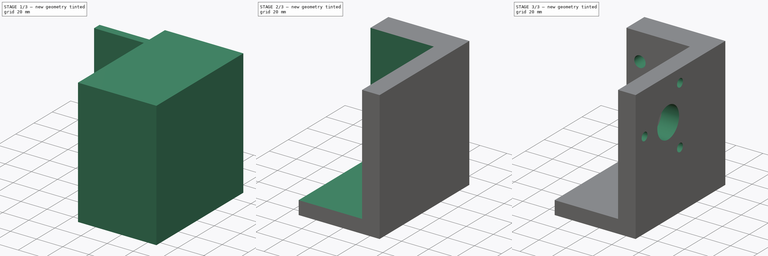
[diagram: build sequence overview — one tinted view per stage of 3, left to right]
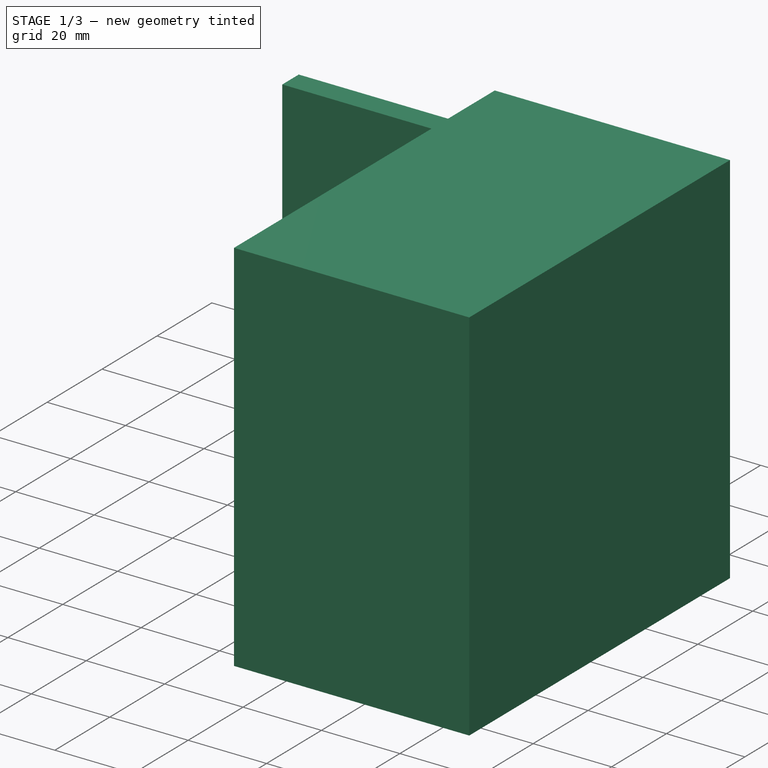
[diagram: stage 1 of 3 — iso view after this stage's code; geometry added in this stage tinted green]
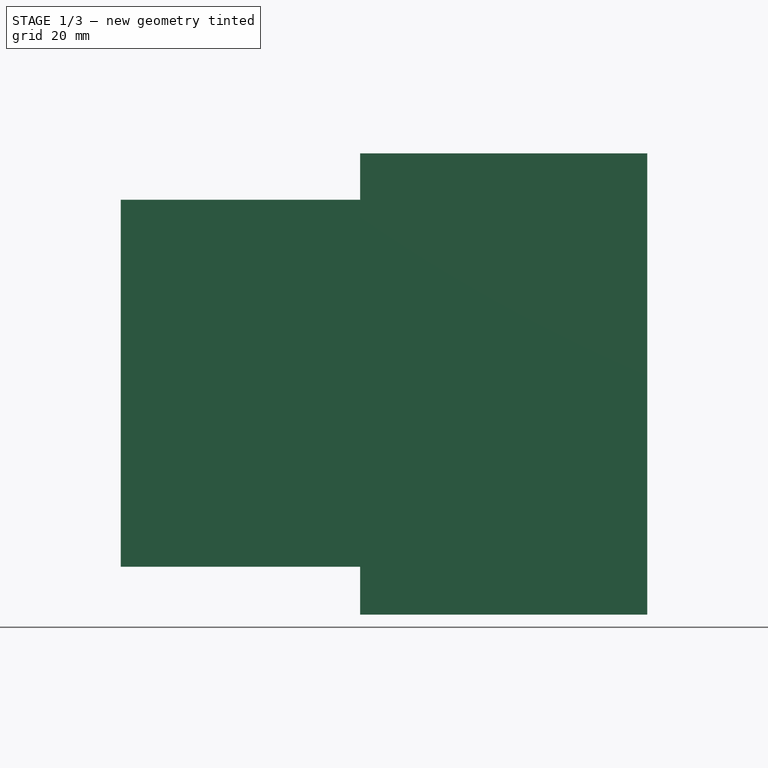
[diagram: stage 1 of 3 — front view after this stage's code; geometry added in this stage tinted green]
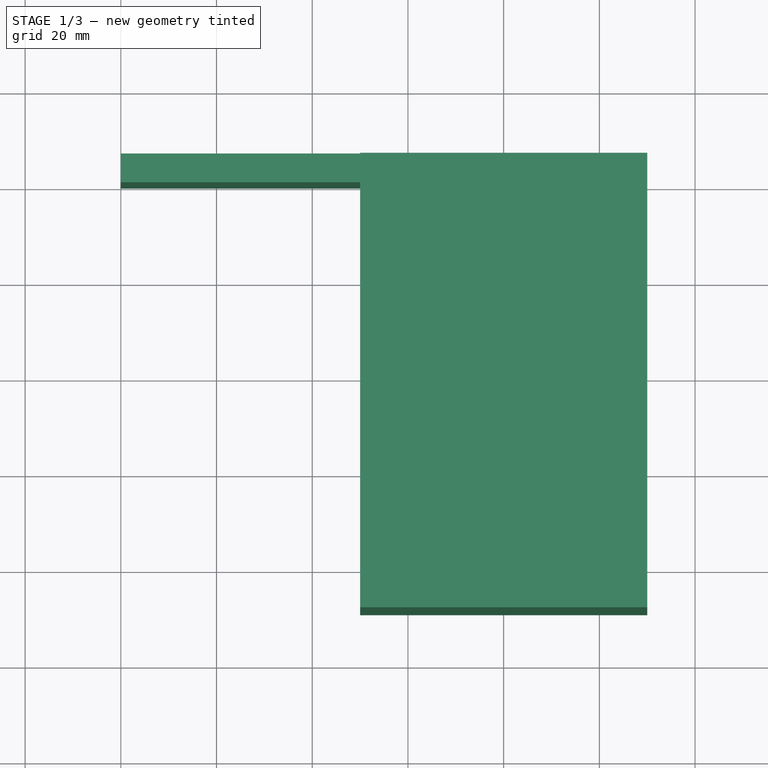
[diagram: stage 1 of 3 — top view after this stage's code; geometry added in this stage tinted green]
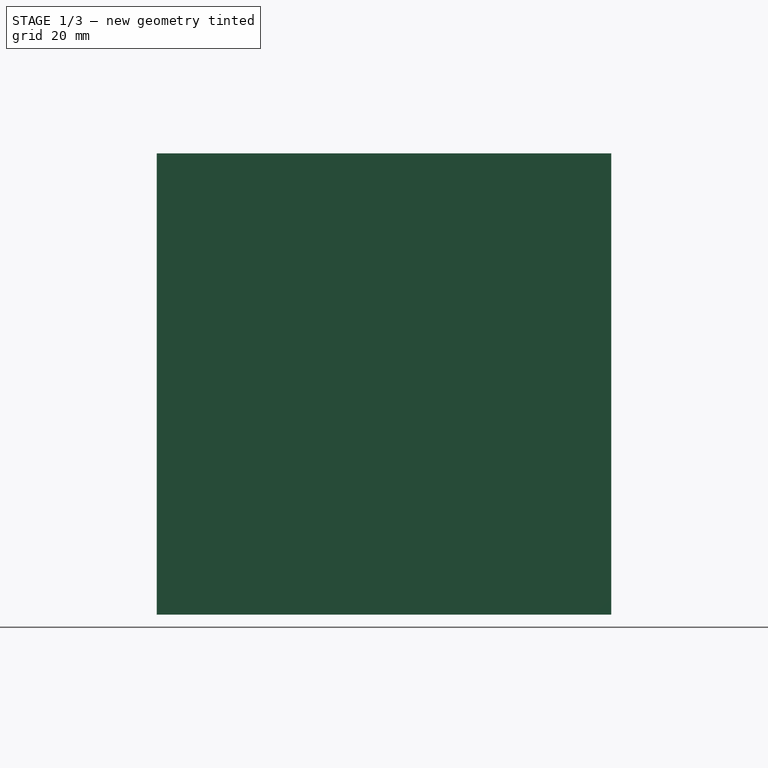
[diagram: stage 1 of 3 — right view after this stage's code; geometry added in this stage tinted green]
FCSTD DOCUMENT  (FreeCAD 0.15R4606 (Git))
Label: motor_mount
License: All rights reserved
LicenseURL: http://en.wikipedia.org/wiki/All_rights_reserved
objects: Sketcher::SketchObject×4, PartDesign::Pocket×3, App::MeasureDistance×3, PartDesign::Pad×1, Part::Box×1, Part::Cut×1
note: 14 computed .brp shape members not serialized (recipe doc carries the construction recipe); baked Part::Feature solids carry a one-line shape summary decoded from their .brp

FEATURE [Sketcher::SketchObject] Sketch
  sketch-geometry (4):
    g0: LineSegment StartX=-50 StartY=6 StartZ=0 EndX=10 EndY=6 EndZ=0
    g1: LineSegment StartX=10 StartY=6 StartZ=0 EndX=10 EndY=-89 EndZ=0
    g2: LineSegment StartX=-50 StartY=6 StartZ=0 EndX=-50 EndY=-89 EndZ=0
    g3: LineSegment StartX=-50 StartY=-89 StartZ=0 EndX=10 EndY=-89 EndZ=0
  constraints (12):
    c: Horizontal(g0)
    c: Coincident(g0,g1)
    c: Vertical(g1)
    c: Distance(g1) = 95
    c: Distance(g0) = 60
    c: DistanceY(g-1,g0) = 6
    c: DistanceX(g-1,g0) = 10
    c: Coincident(g2,g3)
    c: Coincident(g1,g3)
    c: Coincident(g0,g2)
    c: Vertical(g2)
    c: Horizontal(g3)
FEATURE [PartDesign::Pad] Pad  label="Triangle Shape"
  Length = 96.4
  Length2 = 100
  Sketch = -> Sketch
  Type = 0
FEATURE [Part::Box] Box  label="Crossbeam Slot"
  Height = 76.7
  Length = 100
  Placement = pos=(-100,0,10) rot=(0,0,1;0rad)
  Width = 6
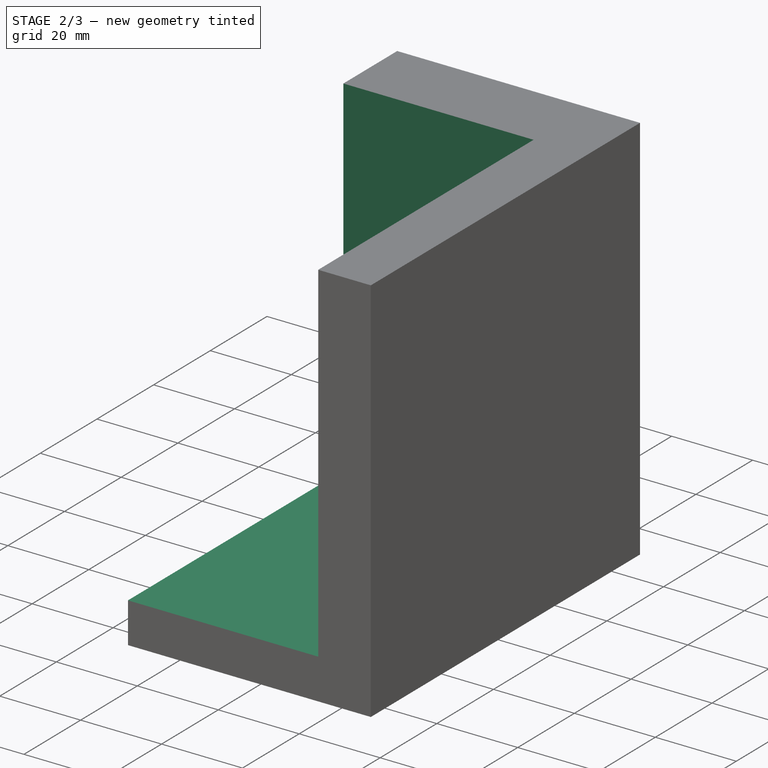
[diagram: stage 2 of 3 — iso view after this stage's code; geometry added in this stage tinted green]
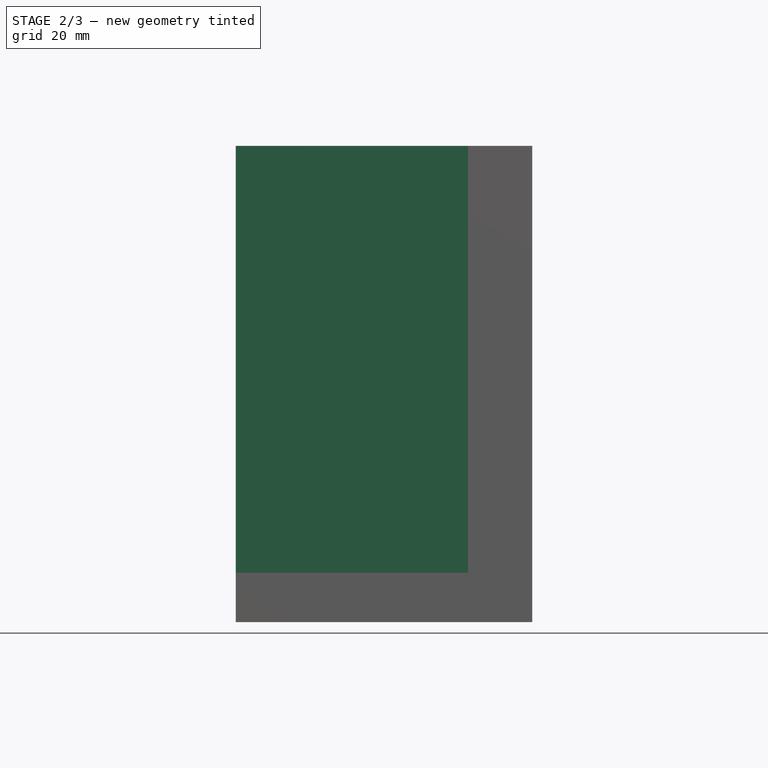
[diagram: stage 2 of 3 — front view after this stage's code; geometry added in this stage tinted green]
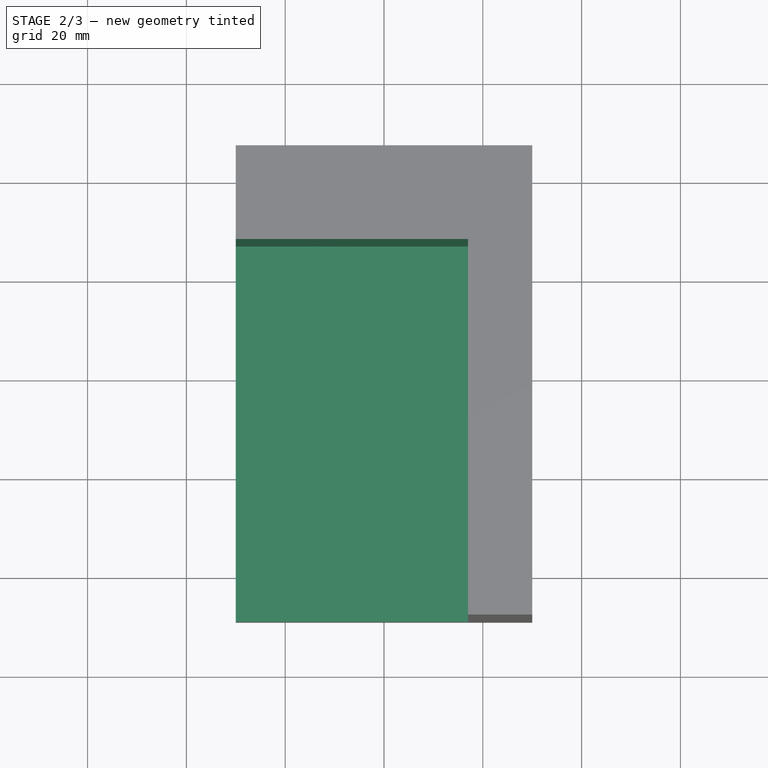
[diagram: stage 2 of 3 — top view after this stage's code; geometry added in this stage tinted green]
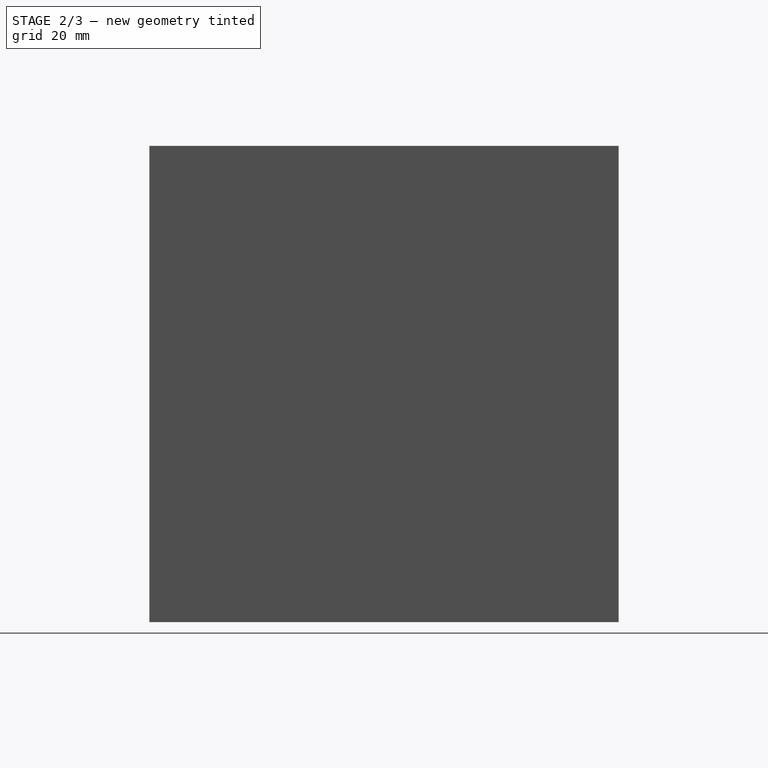
[diagram: stage 2 of 3 — right view after this stage's code; geometry added in this stage tinted green]
FEATURE [Part::Cut] Cut
  Base = -> Pad
  Tool = -> Box
FEATURE [Sketcher::SketchObject] Sketch001
  Placement = pos=(0,0,96.4) rot=(0,0,1;0rad)
  Support = -> Cut [Face4]
  sketch-geometry (4):
    g0: LineSegment StartX=-93 StartY=-13 StartZ=0 EndX=-3 EndY=-13 EndZ=0
    g1: LineSegment StartX=-3 StartY=-13 StartZ=0 EndX=-3 EndY=-103 EndZ=0
    g2: LineSegment StartX=-93 StartY=-13 StartZ=0 EndX=-93 EndY=-103 EndZ=0
    g3: LineSegment StartX=-93 StartY=-103 StartZ=0 EndX=-3 EndY=-103 EndZ=0
  constraints (12):
    c: Horizontal(g0)
    c: Coincident(g0,g1)
    c: Vertical(g1)
    c: DistanceY(g-1,g0) = -13
    c: Distance(g1) = 90
    c: Distance(g0) = 90
    c: DistanceX(g-1,g0) = -3
    c: Vertical(g2)
    c: Coincident(g2,g3)
    c: Horizontal(g3)
    c: Coincident(g1,g3)
    c: Coincident(g0,g2)
FEATURE [PartDesign::Pocket] Pocket
  Length = 86.4
  Sketch = -> Sketch001
  Type = 0
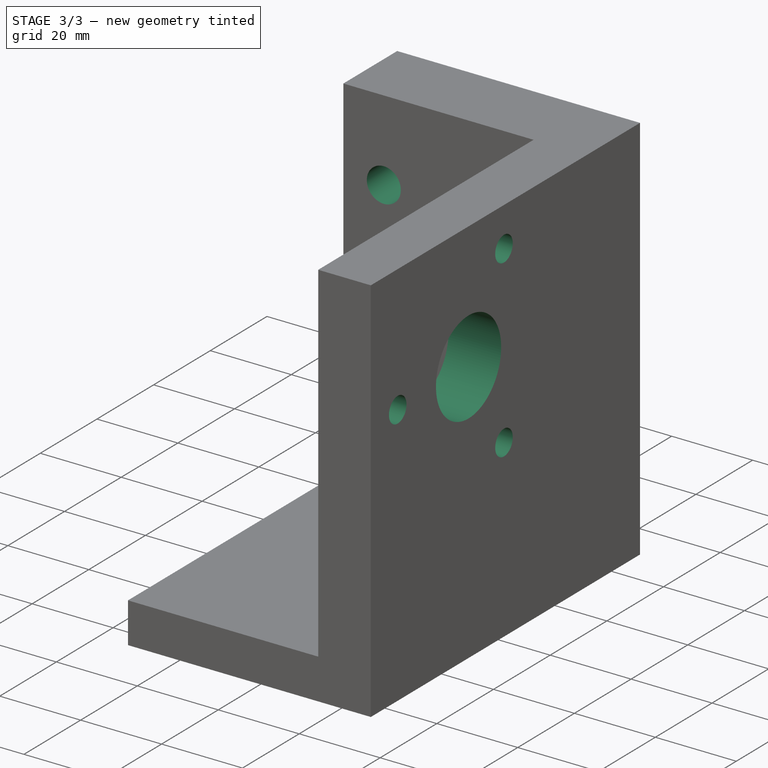
[diagram: stage 3 of 3 — iso view after this stage's code; geometry added in this stage tinted green]
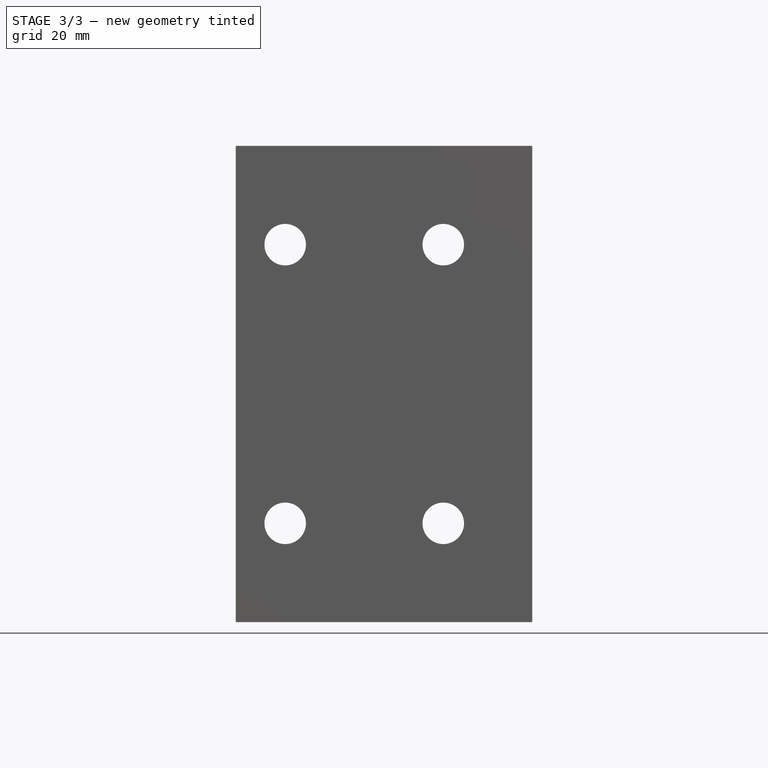
[diagram: stage 3 of 3 — front view after this stage's code; geometry added in this stage tinted green]
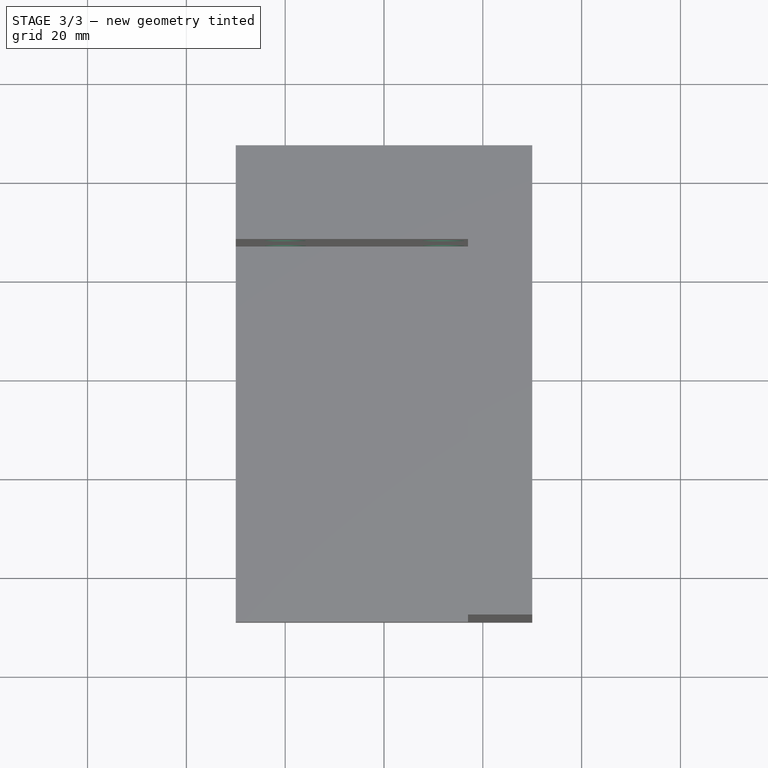
[diagram: stage 3 of 3 — top view after this stage's code; geometry added in this stage tinted green]
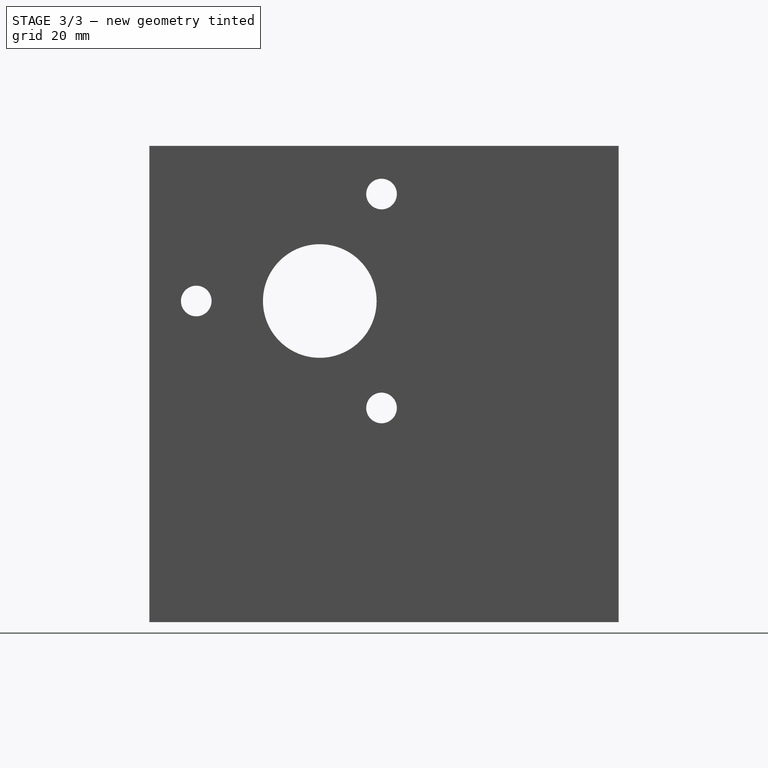
[diagram: stage 3 of 3 — right view after this stage's code; geometry added in this stage tinted green]
FEATURE [Sketcher::SketchObject] Sketch003  label="Motor Attach Screw Holes"
  Placement = pos=(10,0,0) rot=(0.57735,0.57735,0.57735;2.0944rad)
  Support = -> Pocket [Face3]
  sketch-geometry (7):
    g0: Circle CenterX=-54.5 CenterY=65 CenterZ=0 NormalX=0 NormalY=0 NormalZ=1 Radius=11.5
    g1: Circle CenterX=-42 CenterY=43.3494 CenterZ=0 NormalX=0 NormalY=0 NormalZ=1 Radius=3.1
    g2: Circle CenterX=-42 CenterY=86.6506 CenterZ=0 NormalX=0 NormalY=0 NormalZ=1 Radius=3.1
    g3: Circle CenterX=-79.5 CenterY=65 CenterZ=0 NormalX=0 NormalY=0 NormalZ=1 Radius=3.1
    g4: LineSegment [constr] StartX=-42 StartY=43.3494 StartZ=0 EndX=-54.5 EndY=65 EndZ=0
    g5: LineSegment [constr] StartX=-54.5 StartY=65 StartZ=0 EndX=-42 EndY=86.6506 EndZ=0
    g6: LineSegment [constr] StartX=-54.5 StartY=65 StartZ=0 EndX=-79.5 EndY=65 EndZ=0
  constraints (18):
    c: Radius(g0) = 11.5
    c: Radius(g1) = 3.1
    c: Equal(g3,g1)
    c: Equal(g1,g2)
    c: Coincident(g0,g4)
    c: Coincident(g4,g1)
    c: Coincident(g0,g5)
    c: Coincident(g2,g5)
    c: Angle(g4,g5) = 2.0944
    c: Coincident(g0,g6)
    c: Coincident(g6,g3)
    c: Angle(g6,g4) = 2.0944
    c: Equal(g6,g4)
    c: Equal(g4,g5)
    c: Distance(g6) = 25
    c: Parallel(g6,g-1)
    c: DistanceY(g-1,g0) = 65
    c: DistanceX(g-1,g2) = -42
FEATURE [PartDesign::Pocket] Pocket001
  Length = 20
  Sketch = -> Sketch003
  Type = 0
FEATURE [Sketcher::SketchObject] Sketch004  label="Top Screw Holes"
  Placement = pos=(0,0,0) rot=(0,0.707107,0.707107;3.14159rad)
  Support = -> Pocket001 [Face17]
  sketch-geometry (8):
    g0: Circle CenterX=8 CenterY=76.4 CenterZ=0 NormalX=0 NormalY=0 NormalZ=1 Radius=4.2
    g1: Circle CenterX=40 CenterY=76.4 CenterZ=0 NormalX=0 NormalY=0 NormalZ=1 Radius=4.2
    g2: Circle CenterX=8 CenterY=20 CenterZ=0 NormalX=0 NormalY=0 NormalZ=1 Radius=4.2
    g3: Circle CenterX=40 CenterY=20 CenterZ=0 NormalX=0 NormalY=0 NormalZ=1 Radius=4.2
    g4: LineSegment [constr] StartX=8 StartY=76.4 StartZ=0 EndX=40 EndY=76.4 EndZ=0
    g5: LineSegment [constr] StartX=40 StartY=76.4 StartZ=0 EndX=40 EndY=20 EndZ=0
    g6: LineSegment [constr] StartX=40 StartY=20 StartZ=0 EndX=8 EndY=20 EndZ=0
    g7: LineSegment [constr] StartX=8 StartY=20 StartZ=0 EndX=8 EndY=76.4 EndZ=0
  constraints (20):
    c: Equal(g3,g2)
    c: Equal(g2,g0)
    c: Equal(g0,g1)
    c: Coincident(g4,g5)
    c: Coincident(g5,g6)
    c: Coincident(g6,g7)
    c: Coincident(g7,g4)
    c: Horizontal(g4)
    c: Horizontal(g6)
    c: Vertical(g5)
    c: Vertical(g7)
    c: Distance(g7) = 56.4
    c: Distance(g4,g4) = 32
    c: DistanceY(g-1,g6) = 20
    c: DistanceX(g-1,g6) = 8
    c: Coincident(g0,g4)
    c: Coincident(g1,g4)
    c: Coincident(g2,g6)
    c: Coincident(g5,g3)
    c: Radius(g1) = 4.2
FEATURE [PartDesign::Pocket] Pocket002
  Length = 13
  Sketch = -> Sketch004
  Type = 0
FEATURE [App::MeasureDistance] Distance  label="Distance: 24.332"
  Distance = 24.3316
  P1 = (0,-36.9,86.6506)
  P2 = (-0.0467724,-13,82.0882)
FEATURE [App::MeasureDistance] Distance001  label="Distance: 14.000"
  Distance = 14.0002
  P1 = (-4,-87.348,96.4)
  P2 = (10,-87.2744,96.4)
FEATURE [App::MeasureDistance] Distance002  label="Distance: 13.008"
  Distance = 13.0083
  P1 = (-50,0,64.6012)
  P2 = (-50,-13,65.0654)
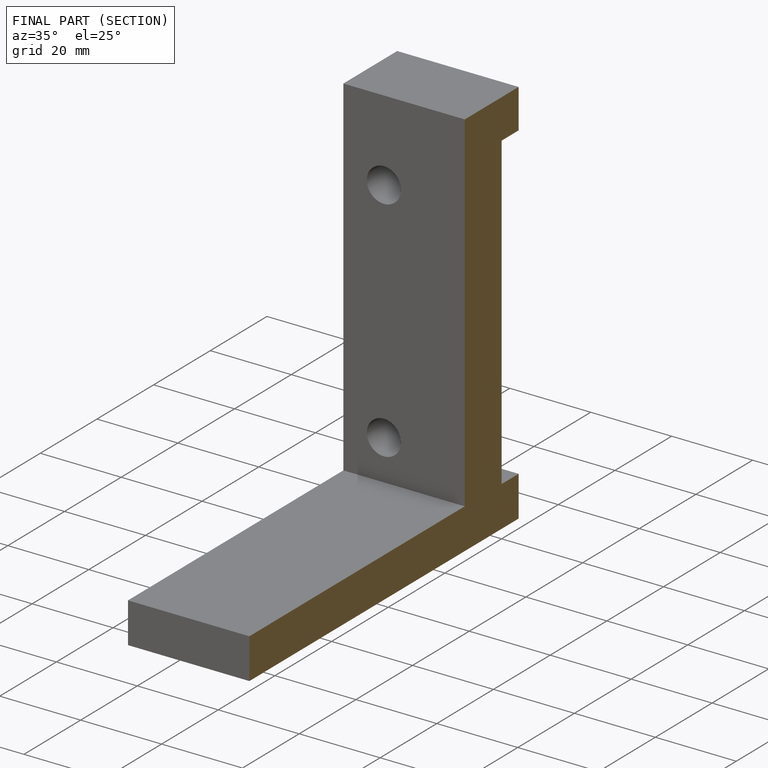
[diagram: finished part — half-section view (interior)]
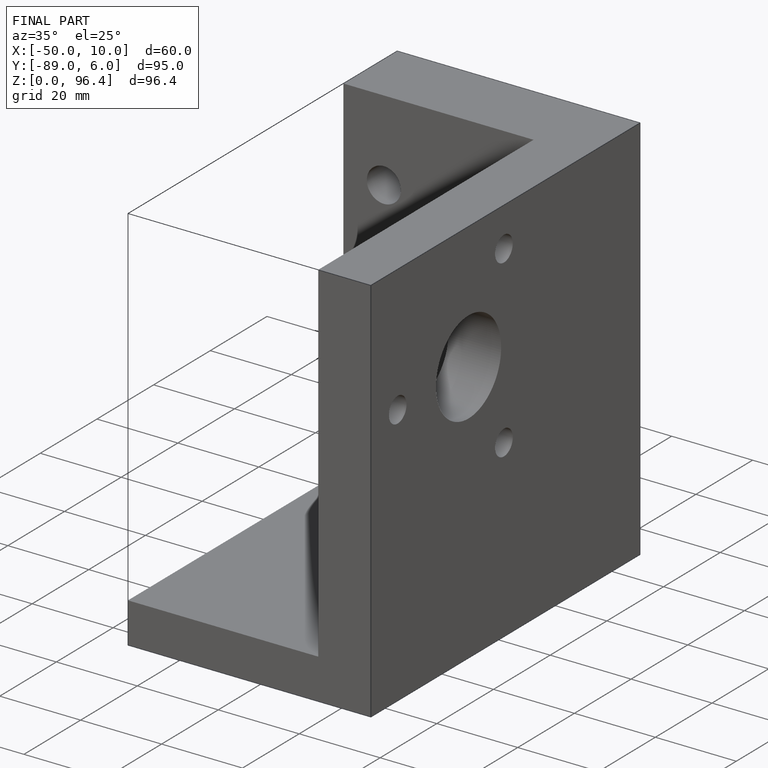
[diagram: finished part — iso view with bounding-box wireframe]
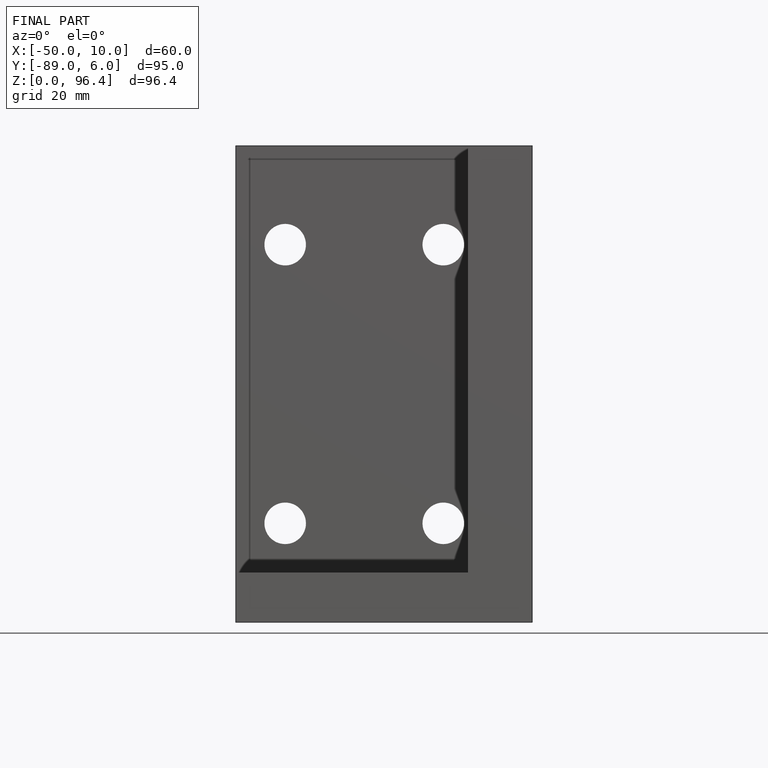
[diagram: finished part — front view with bounding-box wireframe]
